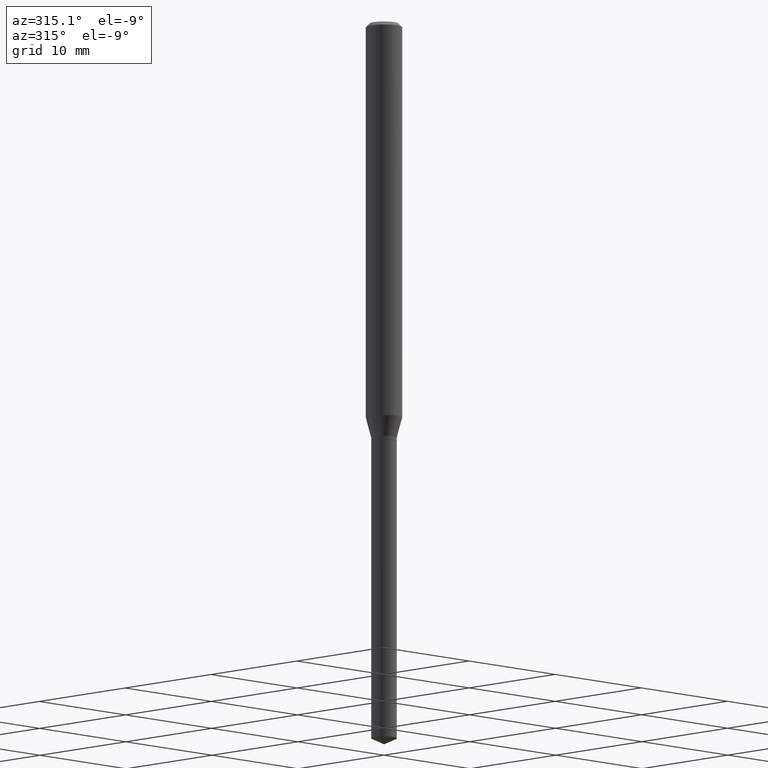
[diagram: clean part render]
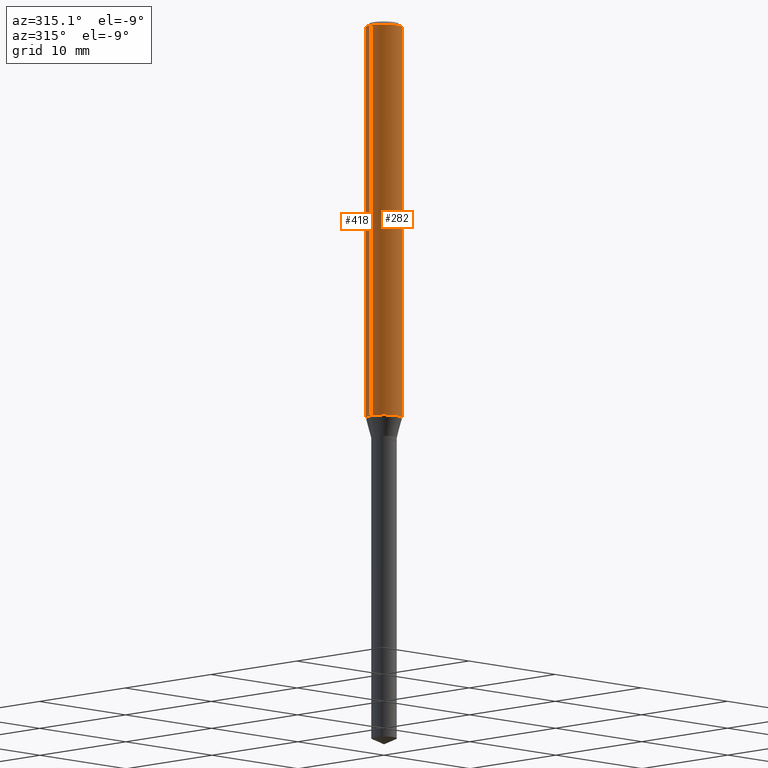
[diagram: same view with one multi-face feature highlighted, each face labeled with its STEP entity id]
A machine part, auxiliary view. The highlighted faces form ONE feature: a constant-radius fillet chain: 2 tangent blend faces with common blend radius 1.4999 mm. The faces share edges in the B-rep.
Their STEP definitions:
[1] entity #282 (Cylinder):
#21 = VECTOR ( 'NONE', #262, 39.37007874015748143 ) ;
#39 = VERTEX_POINT ( 'NONE', #391 ) ;
#41 = ORIENTED_EDGE ( 'NONE', *, *, #434, .T. ) ;
#47 = EDGE_LOOP ( 'NONE', ( #78, #425, #41, #223 ) ) ;
#72 = LINE ( 'NONE', #232, #21 ) ;
#78 = ORIENTED_EDGE ( 'NONE', *, *, #173, .F. ) ;
#83 = CYLINDRICAL_SURFACE ( 'NONE', #90, 0.05905000000000008159 ) ;
#90 = AXIS2_PLACEMENT_3D ( 'NONE', #426, #438, #99 ) ;
#94 = AXIS2_PLACEMENT_3D ( 'NONE', #392, #132, #433 ) ;
#96 = EDGE_CURVE ( 'NONE', #415, #383, #387, .T. ) ;
#99 = DIRECTION ( 'NONE',  ( 1.000000000000000000, -6.982962677686267499E-15, 4.876176775795936353E-29 ) ) ;
#100 = LINE ( 'NONE', #402, #453 ) ;
#132 = DIRECTION ( 'NONE',  ( -2.445468806185136597E-29, 3.491481338843145583E-15, 1.000000000000000000 ) ) ;
#173 = EDGE_CURVE ( 'NONE', #415, #39, #72, .T. ) ;
#208 = CIRCLE ( 'NONE', #334, 0.05905000000000000526 ) ;
#223 = ORIENTED_EDGE ( 'NONE', *, *, #484, .F. ) ;
#232 = CARTESIAN_POINT ( 'NONE',  ( -0.05905000000000008159, 4.195754854663397395E-16, -2.904631170795525745E-30 ) ) ;
#256 = CARTESIAN_POINT ( 'NONE',  ( -0.05905000000000015792, -4.089472604233959354E-15, -1.291442700706030733 ) ) ;
#257 = DIRECTION ( 'NONE',  ( -2.445468806185136877E-29, 3.491481338843145188E-15, 1.000000000000000000 ) ) ;
#262 = DIRECTION ( 'NONE',  ( -2.445468806185136877E-29, 3.491481338843145188E-15, 1.000000000000000000 ) ) ;
#267 = VERTEX_POINT ( 'NONE', #362 ) ;
#282 = ADVANCED_FACE ( 'NONE', ( #287 ), #83, .T. ) ;
#287 = FACE_OUTER_BOUND ( 'NONE', #47, .T. ) ;
#334 = AXIS2_PLACEMENT_3D ( 'NONE', #416, #409, #420 ) ;
#362 = CARTESIAN_POINT ( 'NONE',  ( 0.05905000000000000526, -4.535783407291119586E-16, -0.01181000000000007738 ) ) ;
#383 = VERTEX_POINT ( 'NONE', #384 ) ;
#384 = CARTESIAN_POINT ( 'NONE',  ( 0.05905000000000015792, -4.921392035817674556E-15, -1.291442700706030733 ) ) ;
#387 = CIRCLE ( 'NONE', #94, 0.05905000000000015792 ) ;
#391 = CARTESIAN_POINT ( 'NONE',  ( -0.05905000000000000526, -1.855565756689678006E-15, -0.01181000000000007738 ) ) ;
#392 = CARTESIAN_POINT ( 'NONE',  ( 3.158182839552085272E-29, -4.509048089700300424E-15, -1.291442700706030733 ) ) ;
#402 = CARTESIAN_POINT ( 'NONE',  ( 0.05905000000000008159, -4.123439461173746736E-16, 2.879382386107504424E-30 ) ) ;
#409 = DIRECTION ( 'NONE',  ( -2.445468806185136597E-29, 3.491481338843145583E-15, 1.000000000000000000 ) ) ;
#415 = VERTEX_POINT ( 'NONE', #256 ) ;
#416 = CARTESIAN_POINT ( 'NONE',  ( 2.888098660104665518E-31, -4.123439461173782112E-17, -0.01181000000000007738 ) ) ;
#420 = DIRECTION ( 'NONE',  ( 1.000000000000000000, -6.982962677686267499E-15, 0.000000000000000000 ) ) ;
#425 = ORIENTED_EDGE ( 'NONE', *, *, #96, .T. ) ;
#426 = CARTESIAN_POINT ( 'NONE',  ( 0.000000000000000000, 0.000000000000000000, 0.000000000000000000 ) ) ;
#433 = DIRECTION ( 'NONE',  ( 1.000000000000000000, -6.982962677686270655E-15, 0.000000000000000000 ) ) ;
#434 = EDGE_CURVE ( 'NONE', #383, #267, #100, .T. ) ;
#438 = DIRECTION ( 'NONE',  ( -2.445468806185136597E-29, 3.491481338843145583E-15, 1.000000000000000000 ) ) ;
#453 = VECTOR ( 'NONE', #257, 39.37007874015748143 ) ;
#484 = EDGE_CURVE ( 'NONE', #39, #267, #208, .T. ) ;
[2] entity #418 (Cylinder):
#13 = ORIENTED_EDGE ( 'NONE', *, *, #169, .T. ) ;
#21 = VECTOR ( 'NONE', #262, 39.37007874015748143 ) ;
#22 = EDGE_CURVE ( 'NONE', #267, #39, #196, .T. ) ;
#38 = CARTESIAN_POINT ( 'NONE',  ( 3.158182839552085272E-29, -4.509048089700300424E-15, -1.291442700706030733 ) ) ;
#39 = VERTEX_POINT ( 'NONE', #391 ) ;
#45 = AXIS2_PLACEMENT_3D ( 'NONE', #239, #123, #285 ) ;
#72 = LINE ( 'NONE', #232, #21 ) ;
#100 = LINE ( 'NONE', #402, #453 ) ;
#102 = CARTESIAN_POINT ( 'NONE',  ( 0.000000000000000000, 0.000000000000000000, 0.000000000000000000 ) ) ;
#109 = ORIENTED_EDGE ( 'NONE', *, *, #173, .T. ) ;
#115 = ORIENTED_EDGE ( 'NONE', *, *, #22, .F. ) ;
#123 = DIRECTION ( 'NONE',  ( -2.445468806185136597E-29, 3.491481338843145583E-15, 1.000000000000000000 ) ) ;
#147 = EDGE_LOOP ( 'NONE', ( #13, #109, #115, #200 ) ) ;
#160 = DIRECTION ( 'NONE',  ( 1.000000000000000000, -6.982962677686270655E-15, 0.000000000000000000 ) ) ;
#169 = EDGE_CURVE ( 'NONE', #383, #415, #372, .T. ) ;
#173 = EDGE_CURVE ( 'NONE', #415, #39, #72, .T. ) ;
#185 = AXIS2_PLACEMENT_3D ( 'NONE', #38, #449, #160 ) ;
#196 = CIRCLE ( 'NONE', #45, 0.05905000000000000526 ) ;
#200 = ORIENTED_EDGE ( 'NONE', *, *, #434, .F. ) ;
#232 = CARTESIAN_POINT ( 'NONE',  ( -0.05905000000000008159, 4.195754854663397395E-16, -2.904631170795525745E-30 ) ) ;
#239 = CARTESIAN_POINT ( 'NONE',  ( 2.888098660104665518E-31, -4.123439461173782112E-17, -0.01181000000000007738 ) ) ;
#256 = CARTESIAN_POINT ( 'NONE',  ( -0.05905000000000015792, -4.089472604233959354E-15, -1.291442700706030733 ) ) ;
#257 = DIRECTION ( 'NONE',  ( -2.445468806185136877E-29, 3.491481338843145188E-15, 1.000000000000000000 ) ) ;
#262 = DIRECTION ( 'NONE',  ( -2.445468806185136877E-29, 3.491481338843145188E-15, 1.000000000000000000 ) ) ;
#267 = VERTEX_POINT ( 'NONE', #362 ) ;
#285 = DIRECTION ( 'NONE',  ( 1.000000000000000000, -6.982962677686267499E-15, 0.000000000000000000 ) ) ;
#327 = AXIS2_PLACEMENT_3D ( 'NONE', #102, #405, #439 ) ;
#362 = CARTESIAN_POINT ( 'NONE',  ( 0.05905000000000000526, -4.535783407291119586E-16, -0.01181000000000007738 ) ) ;
#365 = CYLINDRICAL_SURFACE ( 'NONE', #327, 0.05905000000000008159 ) ;
#372 = CIRCLE ( 'NONE', #185, 0.05905000000000015792 ) ;
#383 = VERTEX_POINT ( 'NONE', #384 ) ;
#384 = CARTESIAN_POINT ( 'NONE',  ( 0.05905000000000015792, -4.921392035817674556E-15, -1.291442700706030733 ) ) ;
#391 = CARTESIAN_POINT ( 'NONE',  ( -0.05905000000000000526, -1.855565756689678006E-15, -0.01181000000000007738 ) ) ;
#402 = CARTESIAN_POINT ( 'NONE',  ( 0.05905000000000008159, -4.123439461173746736E-16, 2.879382386107504424E-30 ) ) ;
#405 = DIRECTION ( 'NONE',  ( -2.445468806185136597E-29, 3.491481338843145583E-15, 1.000000000000000000 ) ) ;
#415 = VERTEX_POINT ( 'NONE', #256 ) ;
#418 = ADVANCED_FACE ( 'NONE', ( #444 ), #365, .T. ) ;
#434 = EDGE_CURVE ( 'NONE', #383, #267, #100, .T. ) ;
#439 = DIRECTION ( 'NONE',  ( 1.000000000000000000, -6.982962677686267499E-15, 4.876176775795936353E-29 ) ) ;
#444 = FACE_OUTER_BOUND ( 'NONE', #147, .T. ) ;
#449 = DIRECTION ( 'NONE',  ( -2.445468806185136597E-29, 3.491481338843145583E-15, 1.000000000000000000 ) ) ;
#453 = VECTOR ( 'NONE', #257, 39.37007874015748143 ) ;